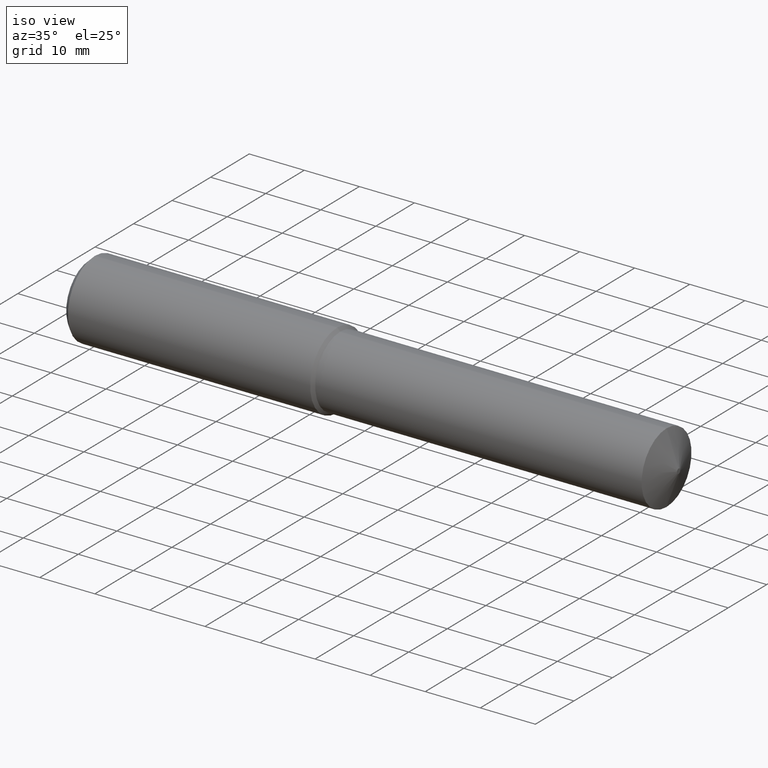
[diagram: clean part render]
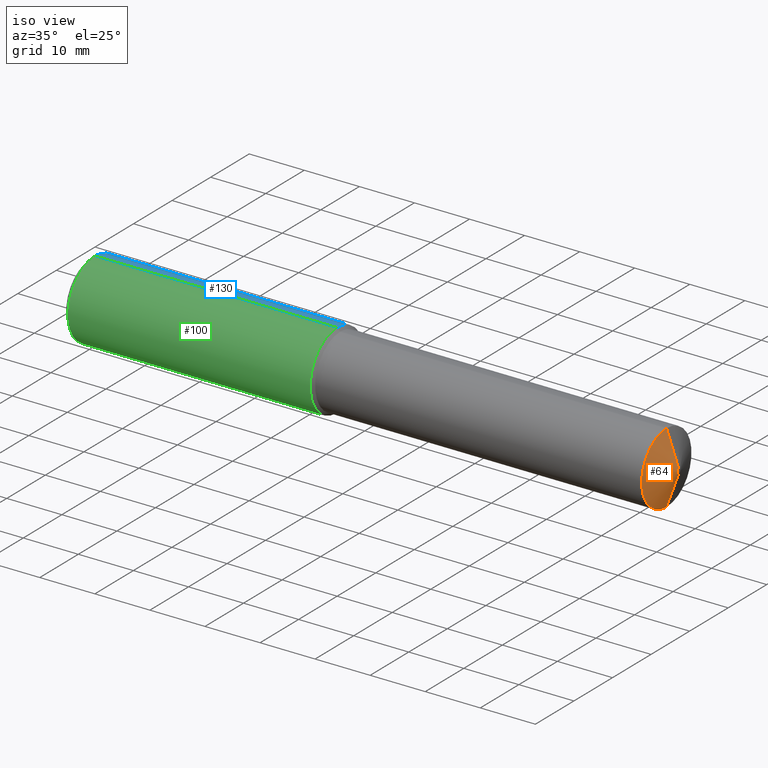
[diagram: same view with three faces highlighted in distinct colors, each labeled with its STEP entity id]
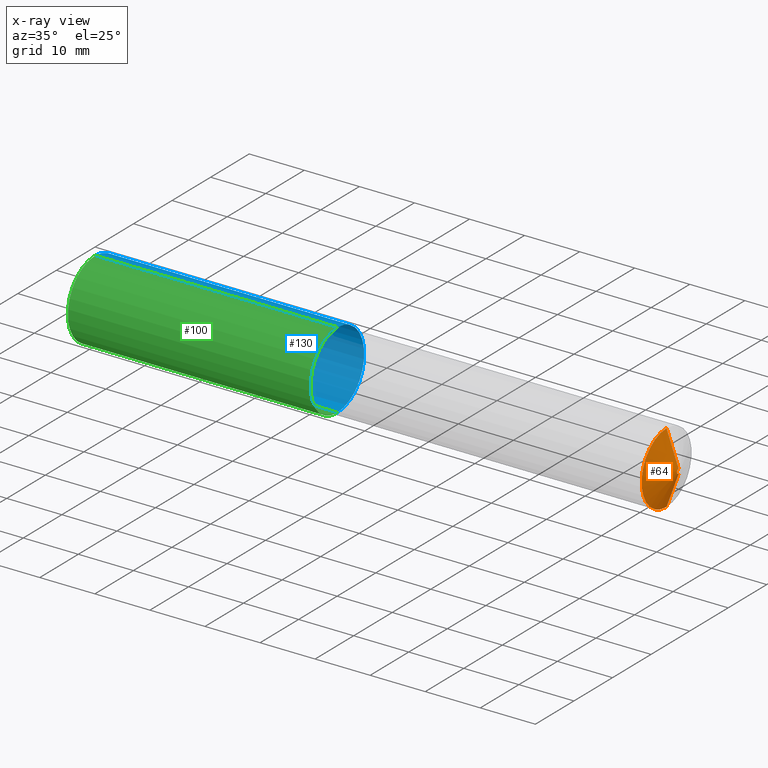
[diagram: x-ray of the same camera — body ghosted, the three highlighted faces saturated]
A machine part, iso view with three faces highlighted in distinct colors.
The next image is the same camera in x-ray (body ghosted, the three faces saturated) — at least one of them is partly hidden behind the body in this view.
Their STEP definitions:

[orange] entity #64 — the highlighted conical surface has half-angle 70 deg.
#12 = CARTESIAN_POINT ( 'NONE',  ( 4.212598425196850016, 0.000000000000000000, 0.01750000000000052208 ) ) ;
#34 = CIRCLE ( 'NONE', #96, 0.01750000000000052208 ) ;
#53 = EDGE_CURVE ( 'NONE', #171, #370, #34, .T. ) ;
#54 = CARTESIAN_POINT ( 'NONE',  ( 4.212598425196850016, 0.000000000000000000, 0.000000000000000000 ) ) ;
#56 = VECTOR ( 'NONE', #270, 39.37007874015748854 ) ;
#64 = ADVANCED_FACE ( 'NONE', ( #140 ), #364, .T. ) ;
#67 = DIRECTION ( 'NONE',  ( -0.3420201433256675472, 1.150791560227850763E-16, -0.9396926207859088720 ) ) ;
#73 = EDGE_CURVE ( 'NONE', #99, #134, #150, .T. ) ;
#90 = CARTESIAN_POINT ( 'NONE',  ( 4.126337479675760811, 0.000000000000000000, 0.2545000000000006146 ) ) ;
#91 = LINE ( 'NONE', #331, #141 ) ;
#96 = AXIS2_PLACEMENT_3D ( 'NONE', #376, #206, #323 ) ;
#99 = VERTEX_POINT ( 'NONE', #90 ) ;
#105 = EDGE_LOOP ( 'NONE', ( #196, #139, #342, #255 ) ) ;
#134 = VERTEX_POINT ( 'NONE', #273 ) ;
#139 = ORIENTED_EDGE ( 'NONE', *, *, #53, .F. ) ;
#140 = FACE_OUTER_BOUND ( 'NONE', #105, .T. ) ;
#141 = VECTOR ( 'NONE', #67, 39.37007874015748854 ) ;
#150 = CIRCLE ( 'NONE', #156, 0.2545000000000005036 ) ;
#152 = CARTESIAN_POINT ( 'NONE',  ( 4.212598425196850016, 0.000000000000000000, 0.01750000000000052208 ) ) ;
#156 = AXIS2_PLACEMENT_3D ( 'NONE', #319, #235, #324 ) ;
#171 = VERTEX_POINT ( 'NONE', #12 ) ;
#177 = DIRECTION ( 'NONE',  ( 0.000000000000000000, 0.000000000000000000, 1.000000000000000000 ) ) ;
#187 = CARTESIAN_POINT ( 'NONE',  ( 4.212598425196850016, 1.665519646840406535E-17, -0.01750000000000052208 ) ) ;
#196 = ORIENTED_EDGE ( 'NONE', *, *, #321, .F. ) ;
#206 = DIRECTION ( 'NONE',  ( 1.000000000000000000, -0.000000000000000000, -0.000000000000000000 ) ) ;
#214 = LINE ( 'NONE', #152, #56 ) ;
#235 = DIRECTION ( 'NONE',  ( 1.000000000000000000, -0.000000000000000000, -0.000000000000000000 ) ) ;
#255 = ORIENTED_EDGE ( 'NONE', *, *, #73, .T. ) ;
#265 = DIRECTION ( 'NONE',  ( -1.000000000000000000, 0.000000000000000000, 0.000000000000000000 ) ) ;
#270 = DIRECTION ( 'NONE',  ( -0.3420201433256675472, 0.000000000000000000, 0.9396926207859088720 ) ) ;
#273 = CARTESIAN_POINT ( 'NONE',  ( 4.126337479675760811, 3.116726103830021186E-17, -0.2545000000000006146 ) ) ;
#276 = EDGE_CURVE ( 'NONE', #171, #99, #214, .T. ) ;
#319 = CARTESIAN_POINT ( 'NONE',  ( 4.126337479675760811, 0.000000000000000000, 0.000000000000000000 ) ) ;
#321 = EDGE_CURVE ( 'NONE', #370, #134, #91, .T. ) ;
#323 = DIRECTION ( 'NONE',  ( 0.000000000000000000, 0.000000000000000000, -1.000000000000000000 ) ) ;
#324 = DIRECTION ( 'NONE',  ( 0.000000000000000000, 0.000000000000000000, -1.000000000000000000 ) ) ;
#331 = CARTESIAN_POINT ( 'NONE',  ( 4.212598425196850016, 2.143131898507931930E-18, -0.01750000000000052208 ) ) ;
#342 = ORIENTED_EDGE ( 'NONE', *, *, #276, .T. ) ;
#364 = CONICAL_SURFACE ( 'NONE', #372, 0.01750000000000052208, 1.221730476396031939 ) ;
#370 = VERTEX_POINT ( 'NONE', #187 ) ;
#372 = AXIS2_PLACEMENT_3D ( 'NONE', #54, #265, #177 ) ;
#376 = CARTESIAN_POINT ( 'NONE',  ( 4.212598425196850016, 0.000000000000000000, 0.000000000000000000 ) ) ;

[blue] entity #130 — the highlighted cylindrical surface (partial cylindrical patch) has radius 7 mm, axis along (1, -0, -0).
#6 = DIRECTION ( 'NONE',  ( 0.000000000000000000, 0.000000000000000000, -1.000000000000000000 ) ) ;
#19 = ORIENTED_EDGE ( 'NONE', *, *, #87, .T. ) ;
#20 = CARTESIAN_POINT ( 'NONE',  ( 1.771653543307086576, 3.375010863791921456E-17, -0.2755905511811025943 ) ) ;
#25 = VECTOR ( 'NONE', #205, 39.37007874015748143 ) ;
#30 = CARTESIAN_POINT ( 'NONE',  ( 1.771653543307086576, 0.000000000000000000, 0.000000000000000000 ) ) ;
#33 = FACE_OUTER_BOUND ( 'NONE', #191, .T. ) ;
#60 = CARTESIAN_POINT ( 'NONE',  ( -0.03808593750000075634, 3.375010863791919607E-17, 0.2755905511811024833 ) ) ;
#61 = AXIS2_PLACEMENT_3D ( 'NONE', #243, #65, #63 ) ;
#63 = DIRECTION ( 'NONE',  ( 0.000000000000000000, 0.000000000000000000, -1.000000000000000000 ) ) ;
#65 = DIRECTION ( 'NONE',  ( 1.000000000000000000, -0.000000000000000000, -0.000000000000000000 ) ) ;
#71 = AXIS2_PLACEMENT_3D ( 'NONE', #145, #320, #6 ) ;
#87 = EDGE_CURVE ( 'NONE', #131, #200, #112, .T. ) ;
#94 = CARTESIAN_POINT ( 'NONE',  ( 0.03937007874015747977, 0.000000000000000000, -0.2755905511811023723 ) ) ;
#112 = LINE ( 'NONE', #60, #25 ) ;
#119 = CIRCLE ( 'NONE', #251, 0.2755905511811025943 ) ;
#123 = EDGE_CURVE ( 'NONE', #371, #200, #119, .T. ) ;
#130 = ADVANCED_FACE ( 'NONE', ( #33 ), #262, .T. ) ;
#131 = VERTEX_POINT ( 'NONE', #348 ) ;
#145 = CARTESIAN_POINT ( 'NONE',  ( -0.03808593750000075634, 0.000000000000000000, 0.000000000000000000 ) ) ;
#151 = VECTOR ( 'NONE', #153, 39.37007874015748143 ) ;
#153 = DIRECTION ( 'NONE',  ( 1.000000000000000000, -0.000000000000000000, -0.000000000000000000 ) ) ;
#165 = ORIENTED_EDGE ( 'NONE', *, *, #263, .F. ) ;
#175 = CIRCLE ( 'NONE', #61, 0.2755905511811023723 ) ;
#178 = DIRECTION ( 'NONE',  ( 0.000000000000000000, 0.000000000000000000, -1.000000000000000000 ) ) ;
#182 = CARTESIAN_POINT ( 'NONE',  ( -0.03808593750000075634, 0.000000000000000000, -0.2755905511811024833 ) ) ;
#191 = EDGE_LOOP ( 'NONE', ( #313, #19, #340, #165 ) ) ;
#200 = VERTEX_POINT ( 'NONE', #299 ) ;
#205 = DIRECTION ( 'NONE',  ( 1.000000000000000000, -0.000000000000000000, -0.000000000000000000 ) ) ;
#243 = CARTESIAN_POINT ( 'NONE',  ( 0.03937007874015747977, 0.000000000000000000, 0.000000000000000000 ) ) ;
#251 = AXIS2_PLACEMENT_3D ( 'NONE', #30, #355, #178 ) ;
#262 = CYLINDRICAL_SURFACE ( 'NONE', #71, 0.2755905511811024833 ) ;
#263 = EDGE_CURVE ( 'NONE', #282, #371, #358, .T. ) ;
#282 = VERTEX_POINT ( 'NONE', #94 ) ;
#298 = EDGE_CURVE ( 'NONE', #282, #131, #175, .T. ) ;
#299 = CARTESIAN_POINT ( 'NONE',  ( 1.771653543307086576, 0.000000000000000000, 0.2755905511811025943 ) ) ;
#313 = ORIENTED_EDGE ( 'NONE', *, *, #298, .T. ) ;
#320 = DIRECTION ( 'NONE',  ( 1.000000000000000000, -0.000000000000000000, -0.000000000000000000 ) ) ;
#340 = ORIENTED_EDGE ( 'NONE', *, *, #123, .F. ) ;
#348 = CARTESIAN_POINT ( 'NONE',  ( 0.03937007874015747977, 3.375010863791918991E-17, 0.2755905511811023723 ) ) ;
#355 = DIRECTION ( 'NONE',  ( 1.000000000000000000, -0.000000000000000000, -0.000000000000000000 ) ) ;
#358 = LINE ( 'NONE', #182, #151 ) ;
#371 = VERTEX_POINT ( 'NONE', #20 ) ;

[green] entity #100 — the highlighted cylindrical surface (partial cylindrical patch) has radius 7 mm, axis along (1, -0, -0).
#3 = AXIS2_PLACEMENT_3D ( 'NONE', #293, #116, #31 ) ;
#17 = EDGE_CURVE ( 'NONE', #131, #282, #147, .T. ) ;
#20 = CARTESIAN_POINT ( 'NONE',  ( 1.771653543307086576, 3.375010863791921456E-17, -0.2755905511811025943 ) ) ;
#24 = ORIENTED_EDGE ( 'NONE', *, *, #263, .T. ) ;
#25 = VECTOR ( 'NONE', #205, 39.37007874015748143 ) ;
#31 = DIRECTION ( 'NONE',  ( 0.000000000000000000, 0.000000000000000000, -1.000000000000000000 ) ) ;
#32 = FACE_OUTER_BOUND ( 'NONE', #74, .T. ) ;
#46 = ORIENTED_EDGE ( 'NONE', *, *, #108, .F. ) ;
#55 = CARTESIAN_POINT ( 'NONE',  ( 1.771653543307086576, 0.000000000000000000, 0.000000000000000000 ) ) ;
#59 = DIRECTION ( 'NONE',  ( 0.000000000000000000, 0.000000000000000000, -1.000000000000000000 ) ) ;
#60 = CARTESIAN_POINT ( 'NONE',  ( -0.03808593750000075634, 3.375010863791919607E-17, 0.2755905511811024833 ) ) ;
#74 = EDGE_LOOP ( 'NONE', ( #373, #253, #24, #46 ) ) ;
#87 = EDGE_CURVE ( 'NONE', #131, #200, #112, .T. ) ;
#94 = CARTESIAN_POINT ( 'NONE',  ( 0.03937007874015747977, 0.000000000000000000, -0.2755905511811023723 ) ) ;
#100 = ADVANCED_FACE ( 'NONE', ( #32 ), #266, .T. ) ;
#108 = EDGE_CURVE ( 'NONE', #200, #371, #204, .T. ) ;
#112 = LINE ( 'NONE', #60, #25 ) ;
#116 = DIRECTION ( 'NONE',  ( 1.000000000000000000, -0.000000000000000000, -0.000000000000000000 ) ) ;
#131 = VERTEX_POINT ( 'NONE', #348 ) ;
#147 = CIRCLE ( 'NONE', #3, 0.2755905511811023723 ) ;
#151 = VECTOR ( 'NONE', #153, 39.37007874015748143 ) ;
#153 = DIRECTION ( 'NONE',  ( 1.000000000000000000, -0.000000000000000000, -0.000000000000000000 ) ) ;
#168 = AXIS2_PLACEMENT_3D ( 'NONE', #55, #231, #59 ) ;
#174 = CARTESIAN_POINT ( 'NONE',  ( -0.03808593750000075634, 0.000000000000000000, 0.000000000000000000 ) ) ;
#182 = CARTESIAN_POINT ( 'NONE',  ( -0.03808593750000075634, 0.000000000000000000, -0.2755905511811024833 ) ) ;
#200 = VERTEX_POINT ( 'NONE', #299 ) ;
#204 = CIRCLE ( 'NONE', #168, 0.2755905511811025943 ) ;
#205 = DIRECTION ( 'NONE',  ( 1.000000000000000000, -0.000000000000000000, -0.000000000000000000 ) ) ;
#231 = DIRECTION ( 'NONE',  ( 1.000000000000000000, -0.000000000000000000, -0.000000000000000000 ) ) ;
#253 = ORIENTED_EDGE ( 'NONE', *, *, #17, .T. ) ;
#263 = EDGE_CURVE ( 'NONE', #282, #371, #358, .T. ) ;
#266 = CYLINDRICAL_SURFACE ( 'NONE', #304, 0.2755905511811024833 ) ;
#269 = DIRECTION ( 'NONE',  ( 1.000000000000000000, -0.000000000000000000, -0.000000000000000000 ) ) ;
#282 = VERTEX_POINT ( 'NONE', #94 ) ;
#290 = DIRECTION ( 'NONE',  ( 0.000000000000000000, 0.000000000000000000, -1.000000000000000000 ) ) ;
#293 = CARTESIAN_POINT ( 'NONE',  ( 0.03937007874015747977, 0.000000000000000000, 0.000000000000000000 ) ) ;
#299 = CARTESIAN_POINT ( 'NONE',  ( 1.771653543307086576, 0.000000000000000000, 0.2755905511811025943 ) ) ;
#304 = AXIS2_PLACEMENT_3D ( 'NONE', #174, #269, #290 ) ;
#348 = CARTESIAN_POINT ( 'NONE',  ( 0.03937007874015747977, 3.375010863791918991E-17, 0.2755905511811023723 ) ) ;
#358 = LINE ( 'NONE', #182, #151 ) ;
#371 = VERTEX_POINT ( 'NONE', #20 ) ;
#373 = ORIENTED_EDGE ( 'NONE', *, *, #87, .F. ) ;